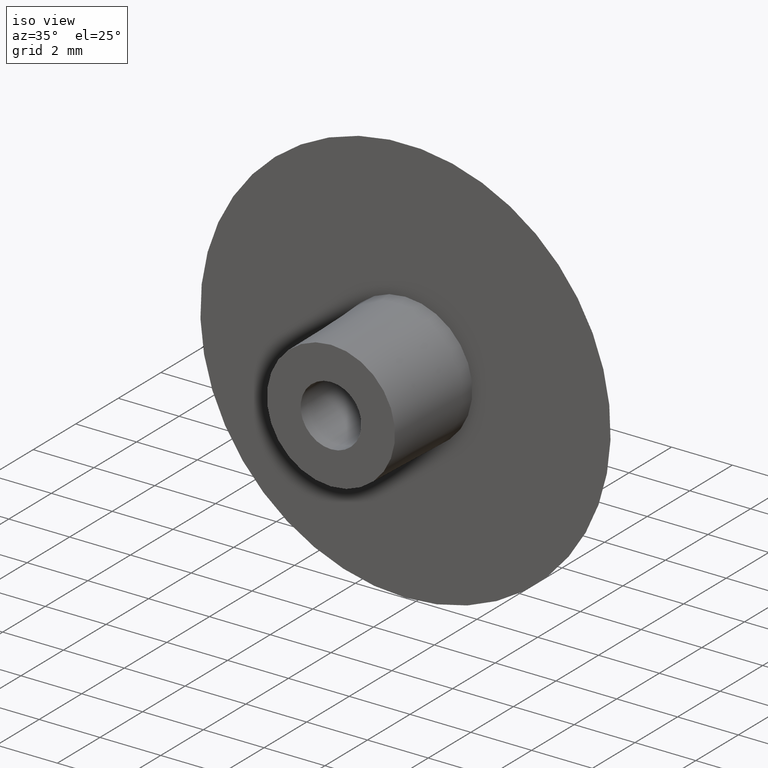
[diagram: clean part render]
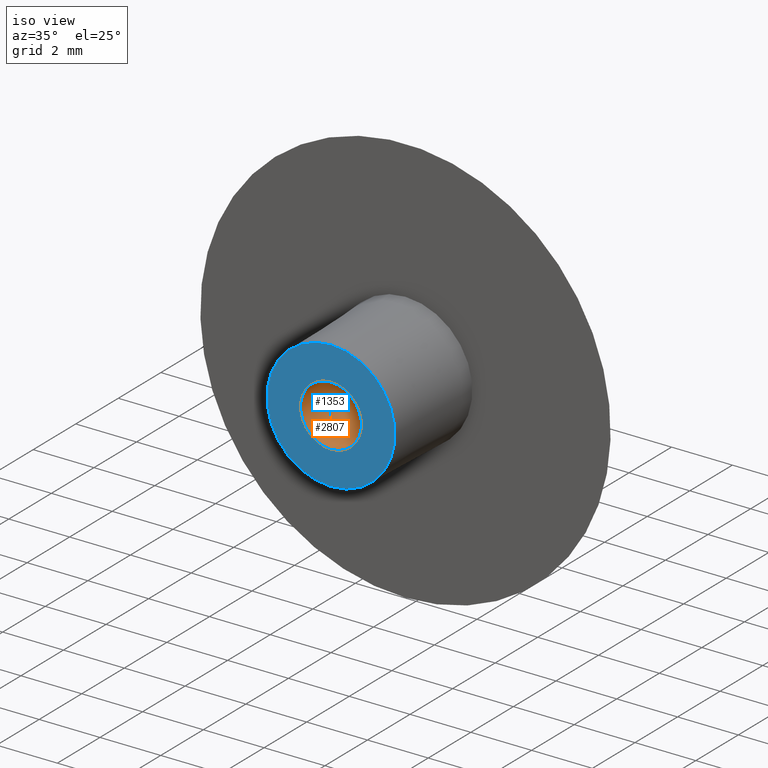
[diagram: same view with the hole feature highlighted: cylindrical wall and planar end face, labeled with their STEP entity ids]
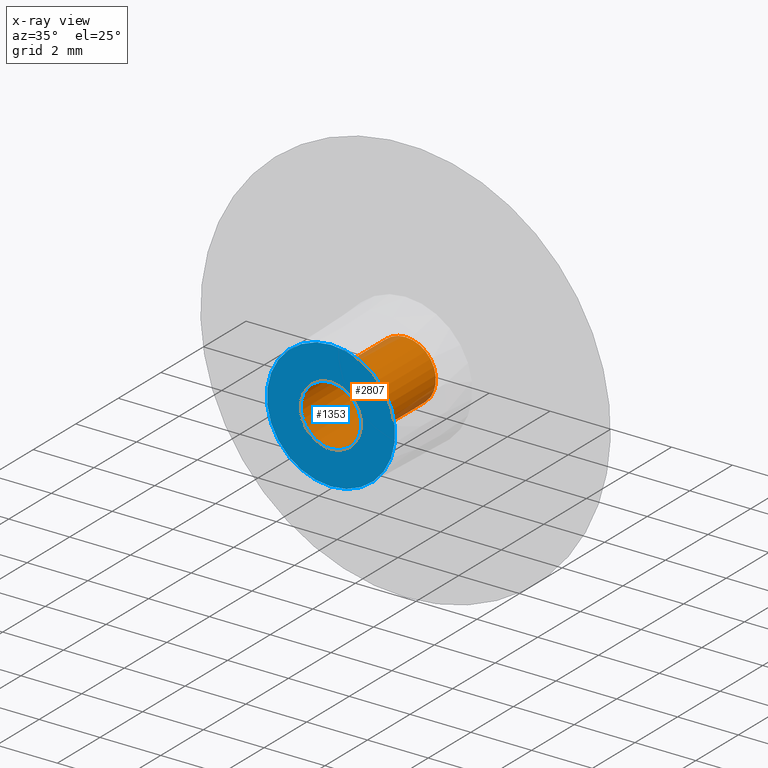
[diagram: x-ray of the same camera — body ghosted, the hole faces saturated]
A machine part, iso view. The highlighted faces form one hole feature of diameter 2 mm: the cylindrical wall (entity #2807, orange) and its adjacent planar end face (entity #1353, blue) — they share a circular edge in the B-rep.
The next image is the same camera in x-ray (body ghosted, the hole faces saturated) — the bore reads through the body.
Wall:
#321 = ORIENTED_EDGE ( 'NONE', *, *, #1123, .F. ) ;
#610 = DIRECTION ( 'NONE',  ( -0.000000000000000000, -1.000000000000000000, -0.000000000000000000 ) ) ;
#1123 = EDGE_CURVE ( 'NONE', #10922, #10922, #1379, .T. ) ;
#1379 = CIRCLE ( 'NONE', #3591, 1.000000000000000000 ) ;
#1709 = CARTESIAN_POINT ( 'NONE',  ( 0.000000000000000000, 0.000000000000000000, -1.000000000000000444 ) ) ;
#2371 = CARTESIAN_POINT ( 'NONE',  ( 0.000000000000000000, 0.000000000000000000, 0.000000000000000000 ) ) ;
#2614 = DIRECTION ( 'NONE',  ( 0.000000000000000000, 0.000000000000000000, -1.000000000000000000 ) ) ;
#2762 = FACE_OUTER_BOUND ( 'NONE', #7067, .T. ) ;
#2807 = ADVANCED_FACE ( 'NONE', ( #4246, #2762 ), #8797, .F. ) ;
#3065 = DIRECTION ( 'NONE',  ( 0.000000000000000000, 0.000000000000000000, -1.000000000000000000 ) ) ;
#3107 = DIRECTION ( 'NONE',  ( -0.000000000000000000, -1.000000000000000000, -0.000000000000000000 ) ) ;
#3591 = AXIS2_PLACEMENT_3D ( 'NONE', #8489, #610, #3065 ) ;
#3796 = ORIENTED_EDGE ( 'NONE', *, *, #7590, .T. ) ;
#3847 = EDGE_LOOP ( 'NONE', ( #3796 ) ) ;
#4202 = CARTESIAN_POINT ( 'NONE',  ( 0.000000000000000000, 3.500000000000000000, -1.000000000000000000 ) ) ;
#4246 = FACE_OUTER_BOUND ( 'NONE', #3847, .T. ) ;
#4571 = AXIS2_PLACEMENT_3D ( 'NONE', #2371, #10570, #2614 ) ;
#4875 = DIRECTION ( 'NONE',  ( 0.000000000000000000, 0.000000000000000000, -1.000000000000000000 ) ) ;
#5176 = CIRCLE ( 'NONE', #4571, 1.000000000000000444 ) ;
#5656 = CARTESIAN_POINT ( 'NONE',  ( 0.000000000000000000, 3.500000000000000000, 0.000000000000000000 ) ) ;
#5980 = VERTEX_POINT ( 'NONE', #1709 ) ;
#7067 = EDGE_LOOP ( 'NONE', ( #321 ) ) ;
#7590 = EDGE_CURVE ( 'NONE', #5980, #5980, #5176, .T. ) ;
#8489 = CARTESIAN_POINT ( 'NONE',  ( 0.000000000000000000, 3.500000000000000000, 0.000000000000000000 ) ) ;
#8797 = CYLINDRICAL_SURFACE ( 'NONE', #9058, 1.000000000000000222 ) ;
#9058 = AXIS2_PLACEMENT_3D ( 'NONE', #5656, #3107, #4875 ) ;
#10570 = DIRECTION ( 'NONE',  ( -0.000000000000000000, -1.000000000000000000, -0.000000000000000000 ) ) ;
#10922 = VERTEX_POINT ( 'NONE', #4202 ) ;
End face:
#157 = DIRECTION ( 'NONE',  ( 0.000000000000000000, 0.000000000000000000, -1.000000000000000000 ) ) ;
#1353 = ADVANCED_FACE ( 'NONE', ( #3175, #8532 ), #7944, .T. ) ;
#1668 = ORIENTED_EDGE ( 'NONE', *, *, #5170, .T. ) ;
#1709 = CARTESIAN_POINT ( 'NONE',  ( 0.000000000000000000, 0.000000000000000000, -1.000000000000000444 ) ) ;
#2371 = CARTESIAN_POINT ( 'NONE',  ( 0.000000000000000000, 0.000000000000000000, 0.000000000000000000 ) ) ;
#2614 = DIRECTION ( 'NONE',  ( 0.000000000000000000, 0.000000000000000000, -1.000000000000000000 ) ) ;
#2732 = CARTESIAN_POINT ( 'NONE',  ( 1.000000000000000444, -7.523163845262640051E-34, 0.000000000000000000 ) ) ;
#3175 = FACE_OUTER_BOUND ( 'NONE', #10380, .T. ) ;
#3592 = DIRECTION ( 'NONE',  ( 0.000000000000000000, 0.000000000000000000, -1.000000000000000000 ) ) ;
#3938 = CIRCLE ( 'NONE', #9517, 2.108349274507870685 ) ;
#4486 = EDGE_LOOP ( 'NONE', ( #4778 ) ) ;
#4545 = CARTESIAN_POINT ( 'NONE',  ( 0.000000000000000000, 0.000000000000000000, 0.000000000000000000 ) ) ;
#4571 = AXIS2_PLACEMENT_3D ( 'NONE', #2371, #10570, #2614 ) ;
#4778 = ORIENTED_EDGE ( 'NONE', *, *, #7590, .F. ) ;
#5170 = EDGE_CURVE ( 'NONE', #8307, #8307, #3938, .T. ) ;
#5176 = CIRCLE ( 'NONE', #4571, 1.000000000000000444 ) ;
#5449 = DIRECTION ( 'NONE',  ( -0.000000000000000000, -1.000000000000000000, -0.000000000000000000 ) ) ;
#5980 = VERTEX_POINT ( 'NONE', #1709 ) ;
#7590 = EDGE_CURVE ( 'NONE', #5980, #5980, #5176, .T. ) ;
#7895 = CARTESIAN_POINT ( 'NONE',  ( 0.000000000000000000, 0.000000000000000000, -2.108349274507870685 ) ) ;
#7944 = PLANE ( 'NONE',  #8306 ) ;
#8306 = AXIS2_PLACEMENT_3D ( 'NONE', #2732, #8867, #3592 ) ;
#8307 = VERTEX_POINT ( 'NONE', #7895 ) ;
#8532 = FACE_BOUND ( 'NONE', #4486, .T. ) ;
#8867 = DIRECTION ( 'NONE',  ( 0.000000000000000000, -1.000000000000000000, -0.000000000000000000 ) ) ;
#9517 = AXIS2_PLACEMENT_3D ( 'NONE', #4545, #5449, #157 ) ;
#10380 = EDGE_LOOP ( 'NONE', ( #1668 ) ) ;
#10570 = DIRECTION ( 'NONE',  ( -0.000000000000000000, -1.000000000000000000, -0.000000000000000000 ) ) ;